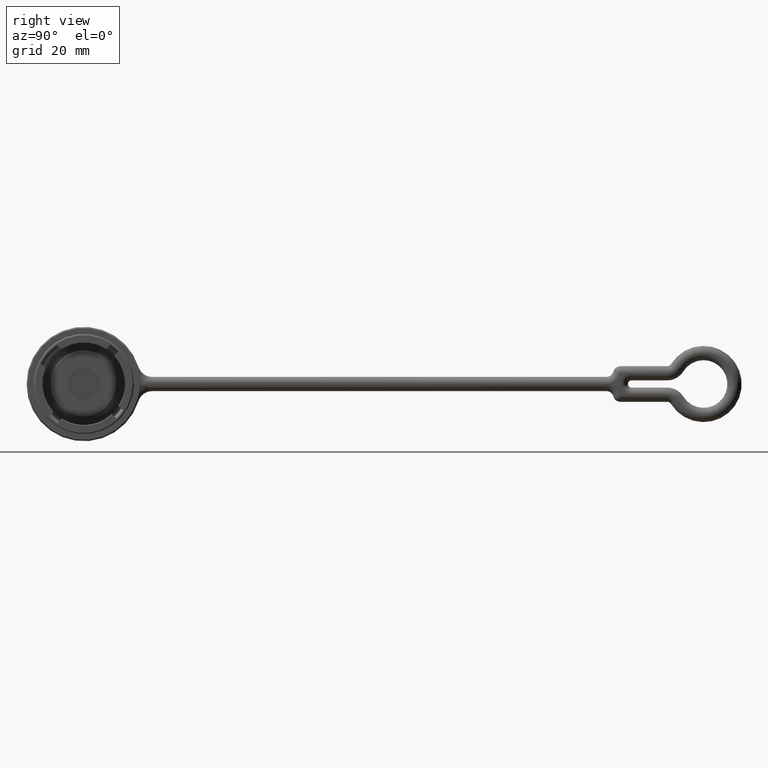
[diagram: clean part render]
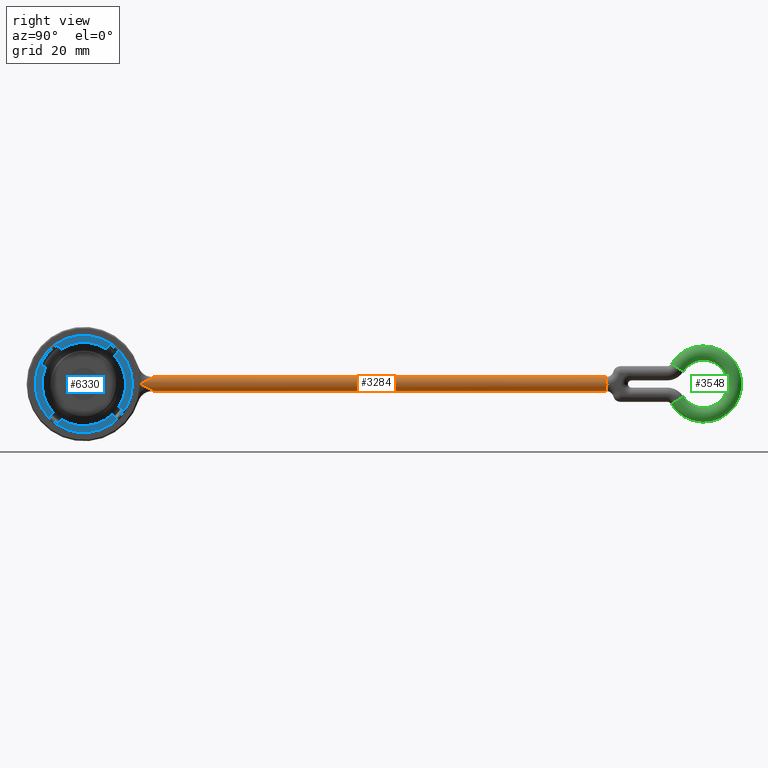
[diagram: same view with three faces highlighted in distinct colors, each labeled with its STEP entity id]
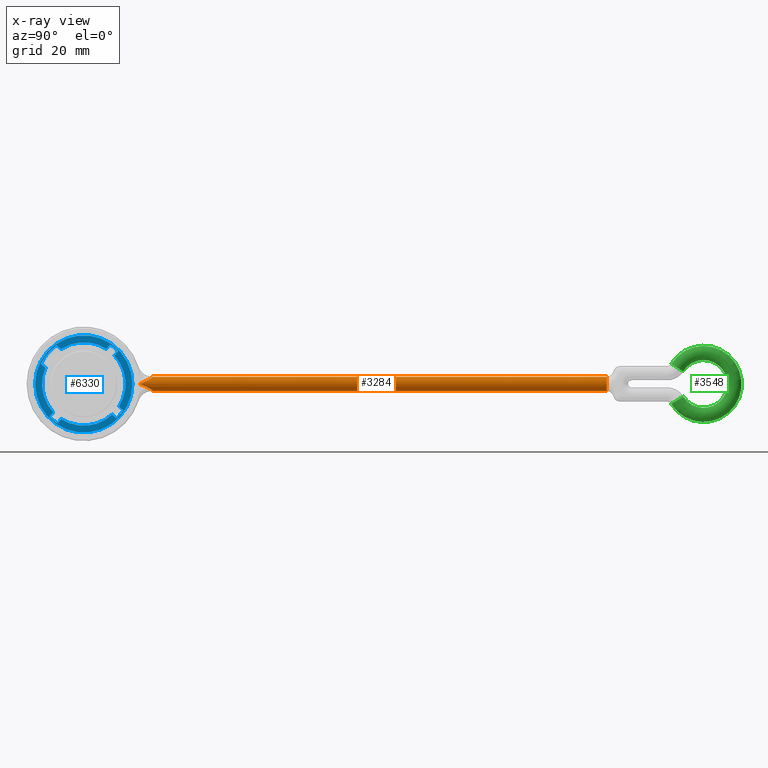
[diagram: x-ray of the same camera — body ghosted, the three highlighted faces saturated]
A machine part, right view with three faces highlighted in distinct colors.
The next image is the same camera in x-ray (body ghosted, the three faces saturated) — at least one of them is partly hidden behind the body in this view.
Their STEP definitions:

[orange] entity #3284 — the highlighted cylindrical surface (edge-blend (fillet) strip) has radius 1.5 mm, axis along (0, 1, 0).
#32=CARTESIAN_POINT('',(-1.100000287477E0,1.435931753891E1,1.445682200855E0));
#33=CARTESIAN_POINT('',(-1.036484863101E0,1.437609606133E1,1.428108385767E0));
#34=CARTESIAN_POINT('',(-9.086721382957E-1,1.438104932059E1,1.384118643859E0));
#35=CARTESIAN_POINT('',(-7.110046174822E-1,1.429902915612E1,1.282018413932E0));
#36=CARTESIAN_POINT('',(-5.405067477794E-1,1.413847514287E1,1.158922930319E0));
#37=CARTESIAN_POINT('',(-3.964749258554E-1,1.392186076087E1,1.022134577849E0));
#38=CARTESIAN_POINT('',(-2.765794965925E-1,1.365845002804E1,8.745813581844E-1));
#39=CARTESIAN_POINT('',(-1.784197957688E-1,1.335264461041E1,7.174167132753E-1));
#40=CARTESIAN_POINT('',(-1.009238070180E-1,1.300569497081E1,5.511685951597E-1));
#41=CARTESIAN_POINT('',(-4.400409352821E-2,1.261703527923E1,3.761082577787E-1));
#42=CARTESIAN_POINT('',(-8.437193870587E-3,1.218543931608E1,1.928094802322E-1));
#43=CARTESIAN_POINT('',(0.E0,1.186683387126E1,6.479443886883E-2));
#44=CARTESIAN_POINT('',(-1.629185409347E-14,1.169999999999E1,
-5.697922710227E-13));
#96=CARTESIAN_POINT('',(-1.629185409347E-14,1.169999999999E1,
-5.697922710227E-13));
#97=CARTESIAN_POINT('',(-3.633124267483E-14,1.186658676937E1,
-6.468688987981E-2));
#98=CARTESIAN_POINT('',(-8.409170397949E-3,1.218476490813E1,
-1.925099253808E-1));
#99=CARTESIAN_POINT('',(-4.388173252209E-2,1.261582797229E1,
-3.756028270099E-1));
#100=CARTESIAN_POINT('',(-1.006809477348E-1,1.300434072435E1,
-5.505408579633E-1));
#101=CARTESIAN_POINT('',(-1.780807960861E-1,1.335136726839E1,
-7.167930066569E-1));
#102=CARTESIAN_POINT('',(-2.761863256578E-1,1.365741380273E1,
-8.740341240341E-1));
#103=CARTESIAN_POINT('',(-3.960684890029E-1,1.392120860942E1,
-1.021706639508E0));
#104=CARTESIAN_POINT('',(-5.402073687031E-1,1.413824793097E1,
-1.158682809009E0));
#105=CARTESIAN_POINT('',(-7.108706693516E-1,1.429906682111E1,
-1.281971420332E0));
#106=CARTESIAN_POINT('',(-9.092071559630E-1,1.438109731538E1,
-1.384362564611E0));
#107=CARTESIAN_POINT('',(-1.036741968508E0,1.437612439538E1,-1.428179038093E0));
#108=CARTESIAN_POINT('',(-1.100000373259E0,1.435931750772E1,-1.445681739504E0));
#110=CARTESIAN_POINT('',(-1.499998403102E0,1.096355575760E2,1.500001939332E0));
#111=CARTESIAN_POINT('',(-1.342726224278E0,1.096354009497E2,1.500001939332E0));
#112=CARTESIAN_POINT('',(-1.028282562602E0,1.096357009425E2,1.450144606067E0));
#113=CARTESIAN_POINT('',(-6.028633848426E-1,1.096337138177E2,1.233055062452E0));
#114=CARTESIAN_POINT('',(-2.659190390514E-1,1.096421201577E2,
8.956783230471E-1));
#115=CARTESIAN_POINT('',(-4.954292114554E-2,1.096558510832E2,
4.704916940561E-1));
#116=CARTESIAN_POINT('',(-1.501847414442E-5,1.096719303074E2,
1.568088107911E-1));
#117=CARTESIAN_POINT('',(-1.029824471588E-5,1.096814194958E2,
3.466609054442E-5));
#119=CARTESIAN_POINT('',(-1.029824471588E-5,1.096814194958E2,
3.466609054442E-5));
#120=CARTESIAN_POINT('',(-1.030815434903E-5,1.096982858020E2,
3.637971815334E-4));
#121=CARTESIAN_POINT('',(4.542776680346E-6,1.097310360679E2,7.884220265404E-4));
#122=CARTESIAN_POINT('',(-6.101197190050E-7,1.097819259004E2,
-1.542393394788E-3));
#123=CARTESIAN_POINT('',(-2.770758663360E-6,1.098076111542E2,
-6.670498601927E-4));
#124=CARTESIAN_POINT('',(-1.249242728640E-5,1.098228929593E2,
-3.051933039520E-3));
#126=CARTESIAN_POINT('',(-1.500000000049E0,1.430908802125E1,-1.500000155045E0));
#127=CARTESIAN_POINT('',(-1.365133236610E0,1.430910066957E1,-1.500003656083E0));
#128=CARTESIAN_POINT('',(-1.230236214346E0,1.432669023236E1,-1.481705556797E0));
#129=CARTESIAN_POINT('',(-1.100000373259E0,1.435931750772E1,-1.445681739504E0));
#131=CARTESIAN_POINT('',(-1.100000287477E0,1.435931753891E1,1.445682200855E0));
#132=CARTESIAN_POINT('',(-1.230244173058E0,1.432667875992E1,1.481712339457E0));
#133=CARTESIAN_POINT('',(-1.365111291097E0,1.430907618556E1,1.500007028379E0));
#134=CARTESIAN_POINT('',(-1.499999999963E0,1.430908802125E1,1.500000241684E0));
#136=DIRECTION('',(-1.955662611077E-8,1.E0,-6.990299260519E-9));
#137=VECTOR('',#136,9.532646955356E1);
#138=CARTESIAN_POINT('',(-1.500000000049E0,1.430908802125E1,-1.500000155045E0));
#139=LINE('',#138,#137);
#172=DIRECTION('',(-1.675149533161E-8,-1.E0,-1.780877888240E-8));
#173=VECTOR('',#172,9.532646955471E1);
#174=CARTESIAN_POINT('',(-1.499998403102E0,1.096355575760E2,1.500001939332E0));
#175=LINE('',#174,#173);
#252=CARTESIAN_POINT('',(-1.249242728640E-5,1.098228929593E2,
-3.051933039520E-3));
#253=CARTESIAN_POINT('',(-2.554633722587E-4,1.097710155094E2,
-6.265665134438E-2));
#254=CARTESIAN_POINT('',(-7.479090789724E-3,1.096942595257E2,
-2.040576519115E-1));
#255=CARTESIAN_POINT('',(-6.362013463369E-2,1.096386939971E2,
-4.626830989947E-1));
#256=CARTESIAN_POINT('',(-1.838761652879E-1,1.096401171433E2,
-7.427579404854E-1));
#257=CARTESIAN_POINT('',(-3.775095419435E-1,1.096416699357E2,
-1.015436711487E0));
#258=CARTESIAN_POINT('',(-6.603546742544E-1,1.096328455934E2,
-1.264618673579E0));
#259=CARTESIAN_POINT('',(-1.045583717623E0,1.096362824323E2,-1.452107314164E0));
#260=CARTESIAN_POINT('',(-1.344722448686E0,1.096356679189E2,-1.500000821406E0));
#261=CARTESIAN_POINT('',(-1.500001864313E0,1.096355575748E2,-1.500000821406E0));
#2574=CARTESIAN_POINT('',(-2.236648358167E-6,1.098266082185E2,
-6.105810448959E-3));
#2576=VERTEX_POINT('',#2574);
#2587=CARTESIAN_POINT('',(-4.962696920074E-14,1.17E1,4.396483177515E-14));
#2589=VERTEX_POINT('',#2587);
#2757=VERTEX_POINT('',#32);
#2759=VERTEX_POINT('',#134);
#2768=VERTEX_POINT('',#108);
#2769=CARTESIAN_POINT('',(-1.499998403102E0,1.096355575760E2,1.500001939332E0));
#2770=VERTEX_POINT('',#2769);
#2771=VERTEX_POINT('',#117);
#2772=VERTEX_POINT('',#261);
#2773=CARTESIAN_POINT('',(-1.500000000049E0,1.430908802125E1,
-1.500000155045E0));
#2774=VERTEX_POINT('',#2773);
#3262=CARTESIAN_POINT('',(-1.5E0,9.737467846727E0,0.E0));
#3263=DIRECTION('',(0.E0,1.E0,0.E0));
#3264=DIRECTION('',(0.E0,0.E0,-1.E0));
#3265=AXIS2_PLACEMENT_3D('',#3262,#3263,#3264);
#3266=CYLINDRICAL_SURFACE('',#3265,1.5E0);
#3268=ORIENTED_EDGE('',*,*,#3267,.F.);
#3270=ORIENTED_EDGE('',*,*,#3269,.T.);
#3272=ORIENTED_EDGE('',*,*,#3271,.T.);
#3274=ORIENTED_EDGE('',*,*,#3273,.T.);
#3276=ORIENTED_EDGE('',*,*,#3275,.F.);
#3278=ORIENTED_EDGE('',*,*,#3277,.T.);
#3279=ORIENTED_EDGE('',*,*,#3254,.F.);
#3280=ORIENTED_EDGE('',*,*,#3090,.F.);
#3281=ORIENTED_EDGE('',*,*,#3128,.T.);
#3282=EDGE_LOOP('',(#3268,#3270,#3272,#3274,#3276,#3278,#3279,#3280,#3281));
#3283=FACE_OUTER_BOUND('',#3282,.F.);
#45=B_SPLINE_CURVE_WITH_KNOTS('',3,(#32,#33,#34,#35,#36,#37,#38,#39,#40,#41,#42,
#43,#44),.UNSPECIFIED.,.F.,.F.,(4,1,1,1,1,1,1,1,1,1,4),(0.E0,1.E-1,2.E-1,3.E-1,
4.E-1,5.E-1,6.E-1,7.E-1,8.E-1,9.E-1,1.E0),.UNSPECIFIED.);
#109=B_SPLINE_CURVE_WITH_KNOTS('',3,(#96,#97,#98,#99,#100,#101,#102,#103,#104,
#105,#106,#107,#108),.UNSPECIFIED.,.F.,.F.,(4,1,1,1,1,1,1,1,1,1,4),(0.E0,1.E-1,
2.E-1,3.E-1,4.E-1,5.E-1,6.E-1,7.E-1,8.E-1,9.E-1,1.E0),.UNSPECIFIED.);
#118=B_SPLINE_CURVE_WITH_KNOTS('',3,(#110,#111,#112,#113,#114,#115,#116,#117),
.UNSPECIFIED.,.F.,.F.,(4,1,1,1,1,4),(0.E0,2.E-1,4.E-1,6.E-1,8.E-1,1.E0),
.UNSPECIFIED.);
#125=B_SPLINE_CURVE_WITH_KNOTS('',3,(#119,#120,#121,#122,#123,#124),
.UNSPECIFIED.,.F.,.F.,(4,1,1,4),(0.E0,3.333333333333E-1,6.666666666667E-1,1.E0),
.UNSPECIFIED.);
#130=B_SPLINE_CURVE_WITH_KNOTS('',3,(#126,#127,#128,#129),.UNSPECIFIED.,.F.,.F.,
(4,4),(0.E0,1.E0),.UNSPECIFIED.);
#135=B_SPLINE_CURVE_WITH_KNOTS('',3,(#131,#132,#133,#134),.UNSPECIFIED.,.F.,.F.,
(4,4),(0.E0,1.E0),.UNSPECIFIED.);
#262=B_SPLINE_CURVE_WITH_KNOTS('',3,(#252,#253,#254,#255,#256,#257,#258,#259,
#260,#261),.UNSPECIFIED.,.F.,.F.,(4,1,1,1,1,1,1,4),(0.E0,1.428571428571E-1,
2.857142857143E-1,4.285714285714E-1,5.714285714286E-1,7.142857142857E-1,
8.571428571429E-1,1.E0),.UNSPECIFIED.);
#3090=EDGE_CURVE('',#2757,#2589,#45,.T.);
#3128=EDGE_CURVE('',#2757,#2759,#135,.T.);
#3254=EDGE_CURVE('',#2589,#2768,#109,.T.);
#3267=EDGE_CURVE('',#2770,#2759,#175,.T.);
#3269=EDGE_CURVE('',#2770,#2771,#118,.T.);
#3271=EDGE_CURVE('',#2771,#2576,#125,.T.);
#3273=EDGE_CURVE('',#2576,#2772,#262,.T.);
#3275=EDGE_CURVE('',#2774,#2772,#139,.T.);
#3277=EDGE_CURVE('',#2774,#2768,#130,.T.);
#3284=ADVANCED_FACE('',(#3283),#3266,.T.);

[blue] entity #6330 — the highlighted planar face has unit normal (1, 0, 0).
#1959=CARTESIAN_POINT('',(1.756E1,0.E0,0.E0));
#1960=DIRECTION('',(1.E0,0.E0,0.E0));
#1961=DIRECTION('',(0.E0,-1.E0,0.E0));
#1962=AXIS2_PLACEMENT_3D('',#1959,#1960,#1961);
#1964=CARTESIAN_POINT('',(1.756E1,0.E0,0.E0));
#1965=DIRECTION('',(1.E0,0.E0,0.E0));
#1966=DIRECTION('',(0.E0,1.E0,0.E0));
#1967=AXIS2_PLACEMENT_3D('',#1964,#1965,#1966);
#1969=CARTESIAN_POINT('',(1.756000005675E1,-5.309654484176E-4,
-5.629647820125E-4));
#1970=DIRECTION('',(-1.E0,0.E0,0.E0));
#1971=DIRECTION('',(0.E0,-9.051601970566E-1,4.250706031525E-1));
#1972=AXIS2_PLACEMENT_3D('',#1969,#1970,#1971);
#1974=DIRECTION('',(-1.403665449098E-12,-7.660444431187E-1,6.427876096868E-1));
#1975=VECTOR('',#1974,1.247795794058E0);
#1976=CARTESIAN_POINT('',(1.756E1,-8.051042252120E0,3.426837996548E0));
#1977=LINE('',#1976,#1975);
#1978=CARTESIAN_POINT('',(1.756E1,0.E0,0.E0));
#1979=DIRECTION('',(-1.E0,0.E0,0.E0));
#1980=DIRECTION('',(0.E0,-7.333111505862E-1,-6.798931948666E-1));
#1981=AXIS2_PLACEMENT_3D('',#1978,#1979,#1980);
#1983=DIRECTION('',(1.763413007286E-5,6.427798678177E-1,7.660509390486E-1));
#1984=VECTOR('',#1983,1.208300464666E0);
#1985=CARTESIAN_POINT('',(1.755997869267E1,-7.193143780592E0,
-6.874685160693E0));
#1986=LINE('',#1985,#1984);
#1987=CARTESIAN_POINT('',(1.755999999941E1,1.610768330895E-5,
-8.163352156476E-6));
#1988=DIRECTION('',(-1.E0,0.E0,0.E0));
#1989=DIRECTION('',(0.E0,-5.534296685958E-1,-8.328959130155E-1));
#1990=AXIS2_PLACEMENT_3D('',#1987,#1988,#1989);
#1992=DIRECTION('',(-1.390427196432E-12,-6.427876096874E-1,-7.660444431183E-1));
#1993=VECTOR('',#1992,1.208573576801E0);
#1994=CARTESIAN_POINT('',(1.756E1,-4.729760361657E0,-7.361512543038E0));
#1995=LINE('',#1994,#1993);
#1996=CARTESIAN_POINT('',(1.756E1,0.E0,0.E0));
#1997=DIRECTION('',(-1.E0,0.E0,0.E0));
#1998=DIRECTION('',(0.E0,6.784249042310E-1,-7.346697552773E-1));
#1999=AXIS2_PLACEMENT_3D('',#1996,#1997,#1998);
#2001=DIRECTION('',(1.763021356960E-5,-7.660509416961E-1,6.427798646626E-1));
#2002=VECTOR('',#2001,1.208569382812E0);
#2003=CARTESIAN_POINT('',(1.755997869266E1,6.862043625828E0,-7.205204422996E0));
#2004=LINE('',#2003,#2002);
#2005=CARTESIAN_POINT('',(1.755999999942E1,8.192515662309E-6,
1.609286974080E-5));
#2006=DIRECTION('',(-1.E0,0.E0,0.E0));
#2007=DIRECTION('',(0.E0,8.319228236867E-1,-5.548913546174E-1));
#2008=AXIS2_PLACEMENT_3D('',#2005,#2006,#2007);
#2010=DIRECTION('',(7.938665706848E-14,7.660444431190E-1,-6.427876096865E-1));
#2011=VECTOR('',#2010,1.208304680784E0);
#2012=CARTESIAN_POINT('',(1.756E1,7.352036306688E0,-4.744477014924E0));
#2013=LINE('',#2012,#2011);
#2014=CARTESIAN_POINT('',(1.756E1,0.E0,0.E0));
#2015=DIRECTION('',(-1.E0,0.E0,0.E0));
#2016=DIRECTION('',(0.E0,7.346697552773E-1,6.784249042310E-1));
#2017=AXIS2_PLACEMENT_3D('',#2014,#2015,#2016);
#2019=DIRECTION('',(1.763019559974E-5,-6.427798646625E-1,-7.660509416962E-1));
#2020=VECTOR('',#2019,1.208569382816E0);
#2021=CARTESIAN_POINT('',(1.755997869269E1,7.205204422999E0,6.862043625832E0));
#2022=LINE('',#2021,#2020);
#2023=CARTESIAN_POINT('',(1.755999999941E1,-1.609286750393E-5,
8.192519158623E-6));
#2024=DIRECTION('',(-1.E0,0.E0,0.E0));
#2025=DIRECTION('',(0.E0,5.548913546174E-1,8.319228236867E-1));
#2026=AXIS2_PLACEMENT_3D('',#2023,#2024,#2025);
#2028=DIRECTION('',(-6.997786808259E-13,6.427876096858E-1,7.660444431196E-1));
#2029=VECTOR('',#2028,1.208304680784E0);
#2030=CARTESIAN_POINT('',(1.756E1,4.744477014924E0,7.352036306688E0));
#2031=LINE('',#2030,#2029);
#2032=CARTESIAN_POINT('',(1.756E1,0.E0,0.E0));
#2033=DIRECTION('',(-1.E0,0.E0,0.E0));
#2034=DIRECTION('',(0.E0,-5.454657648820E-1,8.381331035949E-1));
#2035=AXIS2_PLACEMENT_3D('',#2032,#2033,#2034);
#2037=DIRECTION('',(1.252356348386E-4,7.663140643513E-1,-6.424661384801E-1));
#2038=VECTOR('',#2037,1.247767040988E0);
#2039=CARTESIAN_POINT('',(1.755984373510E1,-5.729006875261E0,8.135312729002E0));
#2040=LINE('',#2039,#2038);
#2599=CARTESIAN_POINT('',(1.756E1,1.019999999999E1,1.739441923831E-13));
#2600=VERTEX_POINT('',#2599);
#2601=CARTESIAN_POINT('',(1.756E1,-1.019999999999E1,0.E0));
#2602=VERTEX_POINT('',#2601);
#2603=CARTESIAN_POINT('',(1.756000005675E1,-9.006909296585E0,4.228905677215E0));
#2604=CARTESIAN_POINT('',(1.756000005675E1,-5.728464920262E0,8.135408289254E0));
#2605=VERTEX_POINT('',#2603);
#2606=VERTEX_POINT('',#2604);
#2607=CARTESIAN_POINT('',(1.756E1,-8.051042252120E0,3.426837996548E0));
#2608=VERTEX_POINT('',#2607);
#2609=CARTESIAN_POINT('',(1.756E1,-6.416472567630E0,-5.949065455083E0));
#2610=VERTEX_POINT('',#2609);
#2611=CARTESIAN_POINT('',(1.755997869267E1,-7.193143780592E0,
-6.874685160693E0));
#2612=VERTEX_POINT('',#2611);
#2613=CARTESIAN_POINT('',(1.755999999941E1,-5.506616482155E0,
-8.287333615547E0));
#2614=VERTEX_POINT('',#2613);
#2615=CARTESIAN_POINT('',(1.756E1,-4.729760361657E0,-7.361512543038E0));
#2616=VERTEX_POINT('',#2615);
#2617=CARTESIAN_POINT('',(1.756E1,5.936217912021E0,-6.428360358676E0));
#2618=VERTEX_POINT('',#2617);
#2619=CARTESIAN_POINT('',(1.755997869266E1,6.862043625828E0,-7.205204422996E0));
#2620=VERTEX_POINT('',#2619);
#2621=CARTESIAN_POINT('',(1.755999999942E1,8.277651392899E0,-5.521160292393E0));
#2622=VERTEX_POINT('',#2621);
#2623=CARTESIAN_POINT('',(1.756E1,7.352036306688E0,-4.744477014924E0));
#2624=VERTEX_POINT('',#2623);
#2625=CARTESIAN_POINT('',(1.756E1,6.428360358676E0,5.936217912021E0));
#2626=VERTEX_POINT('',#2625);
#2627=CARTESIAN_POINT('',(1.755997869269E1,7.205204422999E0,6.862043625832E0));
#2628=VERTEX_POINT('',#2627);
#2629=CARTESIAN_POINT('',(1.755999999941E1,5.521160292393E0,8.277651392899E0));
#2630=VERTEX_POINT('',#2629);
#2631=CARTESIAN_POINT('',(1.756E1,4.744477014924E0,7.352036306688E0));
#2632=VERTEX_POINT('',#2631);
#2633=CARTESIAN_POINT('',(1.756E1,-4.772825442718E0,7.333664656456E0));
#2634=VERTEX_POINT('',#2633);
#6287=CARTESIAN_POINT('',(1.756E1,0.E0,0.E0));
#6288=DIRECTION('',(1.E0,0.E0,0.E0));
#6289=DIRECTION('',(0.E0,-1.E0,0.E0));
#6290=AXIS2_PLACEMENT_3D('',#6287,#6288,#6289);
#6291=PLANE('',#6290);
#6292=ORIENTED_EDGE('',*,*,#6281,.F.);
#6293=ORIENTED_EDGE('',*,*,#6267,.F.);
#6294=EDGE_LOOP('',(#6292,#6293));
#6295=FACE_OUTER_BOUND('',#6294,.F.);
#6297=ORIENTED_EDGE('',*,*,#6296,.F.);
#6299=ORIENTED_EDGE('',*,*,#6298,.F.);
#6301=ORIENTED_EDGE('',*,*,#6300,.F.);
#6303=ORIENTED_EDGE('',*,*,#6302,.F.);
#6305=ORIENTED_EDGE('',*,*,#6304,.F.);
#6307=ORIENTED_EDGE('',*,*,#6306,.F.);
#6309=ORIENTED_EDGE('',*,*,#6308,.F.);
#6311=ORIENTED_EDGE('',*,*,#6310,.F.);
#6313=ORIENTED_EDGE('',*,*,#6312,.F.);
#6315=ORIENTED_EDGE('',*,*,#6314,.F.);
#6317=ORIENTED_EDGE('',*,*,#6316,.F.);
#6319=ORIENTED_EDGE('',*,*,#6318,.F.);
#6321=ORIENTED_EDGE('',*,*,#6320,.F.);
#6323=ORIENTED_EDGE('',*,*,#6322,.F.);
#6325=ORIENTED_EDGE('',*,*,#6324,.F.);
#6327=ORIENTED_EDGE('',*,*,#6326,.F.);
#6328=EDGE_LOOP('',(#6297,#6299,#6301,#6303,#6305,#6307,#6309,#6311,#6313,#6315,
#6317,#6319,#6321,#6323,#6325,#6327));
#6329=FACE_BOUND('',#6328,.F.);
#1963=CIRCLE('',#1962,1.019999999999E1);
#1968=CIRCLE('',#1967,1.019999999999E1);
#1973=CIRCLE('',#1972,9.950037971646E0);
#1982=CIRCLE('',#1981,8.75E0);
#1991=CIRCLE('',#1990,9.950013348236E0);
#2000=CIRCLE('',#1999,8.75E0);
#2009=CIRCLE('',#2008,9.950013348234E0);
#2018=CIRCLE('',#2017,8.75E0);
#2027=CIRCLE('',#2026,9.950013348230E0);
#2036=CIRCLE('',#2035,8.75E0);
#6267=EDGE_CURVE('',#2600,#2602,#1968,.T.);
#6281=EDGE_CURVE('',#2602,#2600,#1963,.T.);
#6296=EDGE_CURVE('',#2605,#2606,#1973,.T.);
#6298=EDGE_CURVE('',#2608,#2605,#1977,.T.);
#6300=EDGE_CURVE('',#2610,#2608,#1982,.T.);
#6302=EDGE_CURVE('',#2612,#2610,#1986,.T.);
#6304=EDGE_CURVE('',#2614,#2612,#1991,.T.);
#6306=EDGE_CURVE('',#2616,#2614,#1995,.T.);
#6308=EDGE_CURVE('',#2618,#2616,#2000,.T.);
#6310=EDGE_CURVE('',#2620,#2618,#2004,.T.);
#6312=EDGE_CURVE('',#2622,#2620,#2009,.T.);
#6314=EDGE_CURVE('',#2624,#2622,#2013,.T.);
#6316=EDGE_CURVE('',#2626,#2624,#2018,.T.);
#6318=EDGE_CURVE('',#2628,#2626,#2022,.T.);
#6320=EDGE_CURVE('',#2630,#2628,#2027,.T.);
#6322=EDGE_CURVE('',#2632,#2630,#2031,.T.);
#6324=EDGE_CURVE('',#2634,#2632,#2036,.T.);
#6326=EDGE_CURVE('',#2606,#2634,#2040,.T.);
#6330=ADVANCED_FACE('',(#6295,#6329),#6291,.T.);

[green] entity #3548 — the highlighted toroidal blend (fillet) surface has major radius 6.5 mm and minor (blend) radius 1.5 mm.
#370=CARTESIAN_POINT('',(-1.5E0,1.244790138025E2,-3.430555553714E0));
#371=DIRECTION('',(0.E0,-5.277777774957E-1,8.493824919209E-1));
#372=DIRECTION('',(-1.E0,0.E0,0.E0));
#373=AXIS2_PLACEMENT_3D('',#370,#371,#372);
#375=CARTESIAN_POINT('',(-1.5E0,1.3E2,0.E0));
#376=DIRECTION('',(-1.E0,0.E0,0.E0));
#377=DIRECTION('',(0.E0,-8.493824930840E-1,5.277777756238E-1));
#378=AXIS2_PLACEMENT_3D('',#375,#376,#377);
#385=CARTESIAN_POINT('',(-3.E0,1.3E2,0.E0));
#386=DIRECTION('',(1.E0,0.E0,0.E0));
#387=DIRECTION('',(0.E0,-8.493824919083E-1,-5.277777775158E-1));
#388=AXIS2_PLACEMENT_3D('',#385,#386,#387);
#415=CARTESIAN_POINT('',(-1.5E0,1.244790138032E2,3.430555554837E0));
#416=DIRECTION('',(0.E0,5.277777780615E-1,8.493824915693E-1));
#417=DIRECTION('',(-1.E0,5.684341886081E-13,-3.552713678800E-13));
#418=AXIS2_PLACEMENT_3D('',#415,#416,#417);
#2809=CARTESIAN_POINT('',(-1.5E0,1.257530875408E2,-2.638888888046E0));
#2810=VERTEX_POINT('',#2809);
#2811=CARTESIAN_POINT('',(-3.E0,1.244790138018E2,-3.430555552980E0));
#2812=VERTEX_POINT('',#2811);
#2813=CARTESIAN_POINT('',(-1.5E0,1.257530875346E2,2.638888878106E0));
#2814=VERTEX_POINT('',#2813);
#2815=CARTESIAN_POINT('',(-3.E0,1.244790138032E2,3.430555554837E0));
#2816=VERTEX_POINT('',#2815);
#3534=CARTESIAN_POINT('',(-1.5E0,1.3E2,0.E0));
#3535=DIRECTION('',(1.E0,0.E0,0.E0));
#3536=DIRECTION('',(0.E0,-8.645926025098E-1,-5.024735134167E-1));
#3537=AXIS2_PLACEMENT_3D('',#3534,#3535,#3536);
#3538=TOROIDAL_SURFACE('',#3537,6.499999999984E0,1.5E0);
#3540=ORIENTED_EDGE('',*,*,#3539,.F.);
#3542=ORIENTED_EDGE('',*,*,#3541,.F.);
#3544=ORIENTED_EDGE('',*,*,#3543,.F.);
#3545=ORIENTED_EDGE('',*,*,#3527,.T.);
#3546=EDGE_LOOP('',(#3540,#3542,#3544,#3545));
#3547=FACE_OUTER_BOUND('',#3546,.F.);
#374=CIRCLE('',#373,1.5E0);
#379=CIRCLE('',#378,4.999999999976E0);
#389=CIRCLE('',#388,6.499999999975E0);
#419=CIRCLE('',#418,1.5E0);
#3527=EDGE_CURVE('',#2812,#2810,#374,.T.);
#3539=EDGE_CURVE('',#2814,#2810,#379,.T.);
#3541=EDGE_CURVE('',#2816,#2814,#419,.T.);
#3543=EDGE_CURVE('',#2812,#2816,#389,.T.);
#3548=ADVANCED_FACE('',(#3547),#3538,.T.);